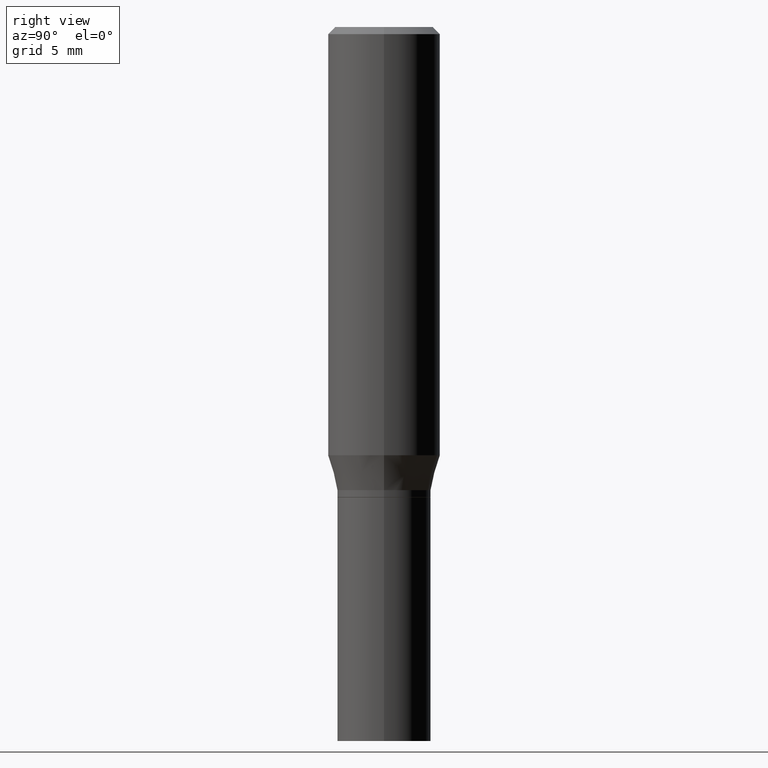
[diagram: clean part render]
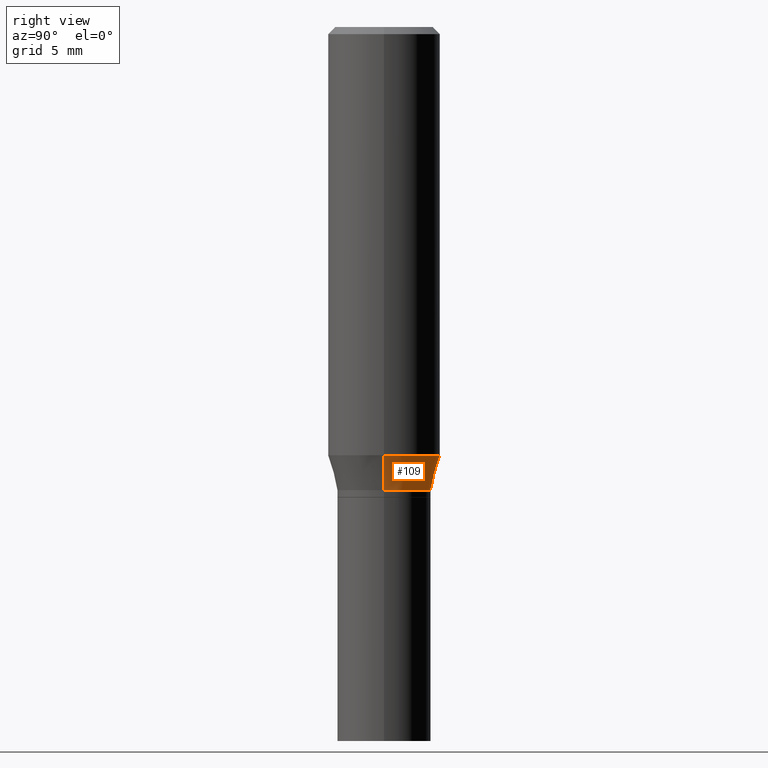
[diagram: same view with one face highlighted and labeled with its STEP entity id]
A machine part, right view. The second image highlights one B-rep face of the part: STEP entity #109.
In plain terms, the highlighted conical surface has half-angle 15 deg.
Its self-contained STEP definition (entity closure, byte-faithful):
#25 = DIRECTION ( 'NONE',  ( 1.000000000000000000, -6.982962677686269077E-15, 0.000000000000000000 ) ) ;
#30 = CARTESIAN_POINT ( 'NONE',  ( -0.1180999999999999966, -2.302013291769461857E-15, -0.8996652016312715050 ) ) ;
#59 = LINE ( 'NONE', #98, #271 ) ;
#62 = CARTESIAN_POINT ( 'NONE',  ( -0.09844999999999988483, -2.499847655554012885E-15, -0.9730000000000001981 ) ) ;
#63 = CARTESIAN_POINT ( 'NONE',  ( 2.379441148418138489E-29, -3.397211342694381629E-15, -0.9730000000000001981 ) ) ;
#67 = EDGE_CURVE ( 'NONE', #92, #420, #228, .T. ) ;
#83 = CARTESIAN_POINT ( 'NONE',  ( 0.09844999999999988483, -4.084684018312594189E-15, -0.9730000000000001981 ) ) ;
#86 = CIRCLE ( 'NONE', #282, 0.09844999999999988483 ) ;
#92 = VERTEX_POINT ( 'NONE', #154 ) ;
#98 = CARTESIAN_POINT ( 'NONE',  ( -0.09844999999999988483, -2.697682019338563913E-15, -0.9730000000000001981 ) ) ;
#109 = ADVANCED_FACE ( 'NONE', ( #227 ), #384, .T. ) ;
#119 = EDGE_CURVE ( 'NONE', #172, #92, #436, .T. ) ;
#134 = ORIENTED_EDGE ( 'NONE', *, *, #67, .F. ) ;
#149 = DIRECTION ( 'NONE',  ( 1.000000000000000000, -6.982962677686269077E-15, 0.000000000000000000 ) ) ;
#154 = CARTESIAN_POINT ( 'NONE',  ( 0.1180999999999999966, -3.965852154936888711E-15, -0.8996652016312715050 ) ) ;
#172 = VERTEX_POINT ( 'NONE', #262 ) ;
#199 = DIRECTION ( 'NONE',  ( -0.2588190451025210725, 5.211531920934548675E-15, 0.9659258262890682012 ) ) ;
#204 = DIRECTION ( 'NONE',  ( -2.445468806185136597E-29, 3.491481338843145583E-15, 1.000000000000000000 ) ) ;
#213 = AXIS2_PLACEMENT_3D ( 'NONE', #333, #367, #263 ) ;
#216 = CARTESIAN_POINT ( 'NONE',  ( 2.200103186599535672E-29, -3.141164262702140448E-15, -0.8996652016312715050 ) ) ;
#222 = AXIS2_PLACEMENT_3D ( 'NONE', #216, #325, #149 ) ;
#227 = FACE_OUTER_BOUND ( 'NONE', #353, .T. ) ;
#228 = CIRCLE ( 'NONE', #222, 0.1180999999999999966 ) ;
#262 = CARTESIAN_POINT ( 'NONE',  ( 0.09844999999999988483, -4.084684018312594189E-15, -0.9730000000000001981 ) ) ;
#263 = DIRECTION ( 'NONE',  ( 1.000000000000000000, -6.982962677686269077E-15, 0.000000000000000000 ) ) ;
#271 = VECTOR ( 'NONE', #199, 39.37007874015748143 ) ;
#272 = VERTEX_POINT ( 'NONE', #62 ) ;
#282 = AXIS2_PLACEMENT_3D ( 'NONE', #63, #204, #25 ) ;
#325 = DIRECTION ( 'NONE',  ( -2.445468806185136597E-29, 3.491481338843145583E-15, 1.000000000000000000 ) ) ;
#333 = CARTESIAN_POINT ( 'NONE',  ( 2.379441148418138489E-29, -3.397211342694381629E-15, -0.9730000000000001981 ) ) ;
#334 = DIRECTION ( 'NONE',  ( 0.2588190451025210725, 1.565188264969624137E-15, 0.9659258262890682012 ) ) ;
#353 = EDGE_LOOP ( 'NONE', ( #356, #451, #134, #358 ) ) ;
#356 = ORIENTED_EDGE ( 'NONE', *, *, #392, .T. ) ;
#358 = ORIENTED_EDGE ( 'NONE', *, *, #119, .F. ) ;
#367 = DIRECTION ( 'NONE',  ( -2.445468806185136597E-29, 3.491481338843145583E-15, 1.000000000000000000 ) ) ;
#377 = EDGE_CURVE ( 'NONE', #272, #420, #59, .T. ) ;
#384 = CONICAL_SURFACE ( 'NONE', #213, 0.09844999999999988483, 0.2617993877991497409 ) ;
#392 = EDGE_CURVE ( 'NONE', #172, #272, #86, .T. ) ;
#420 = VERTEX_POINT ( 'NONE', #30 ) ;
#435 = VECTOR ( 'NONE', #334, 39.37007874015748143 ) ;
#436 = LINE ( 'NONE', #83, #435 ) ;
#451 = ORIENTED_EDGE ( 'NONE', *, *, #377, .T. ) ;